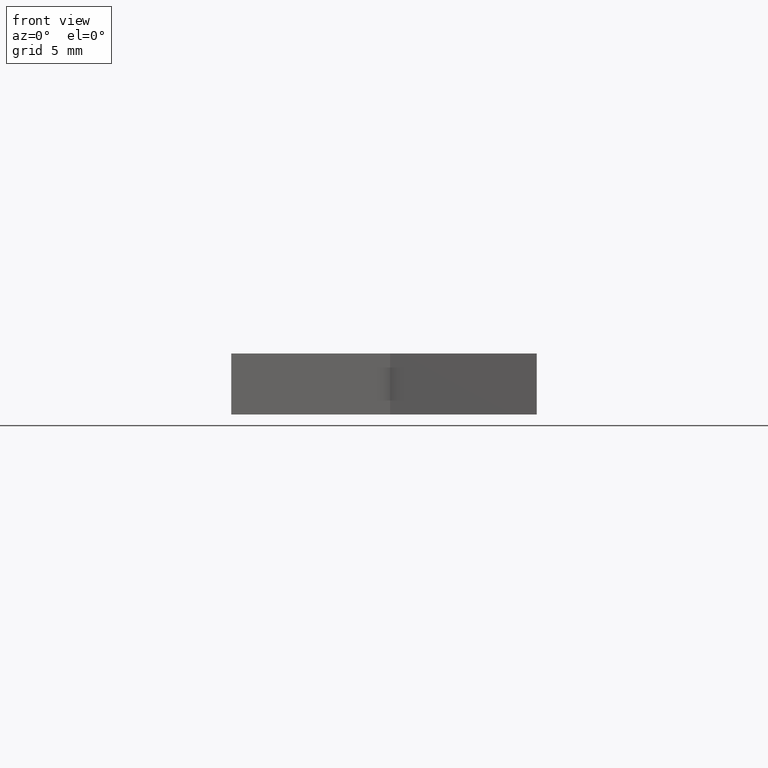
[diagram: clean part render]
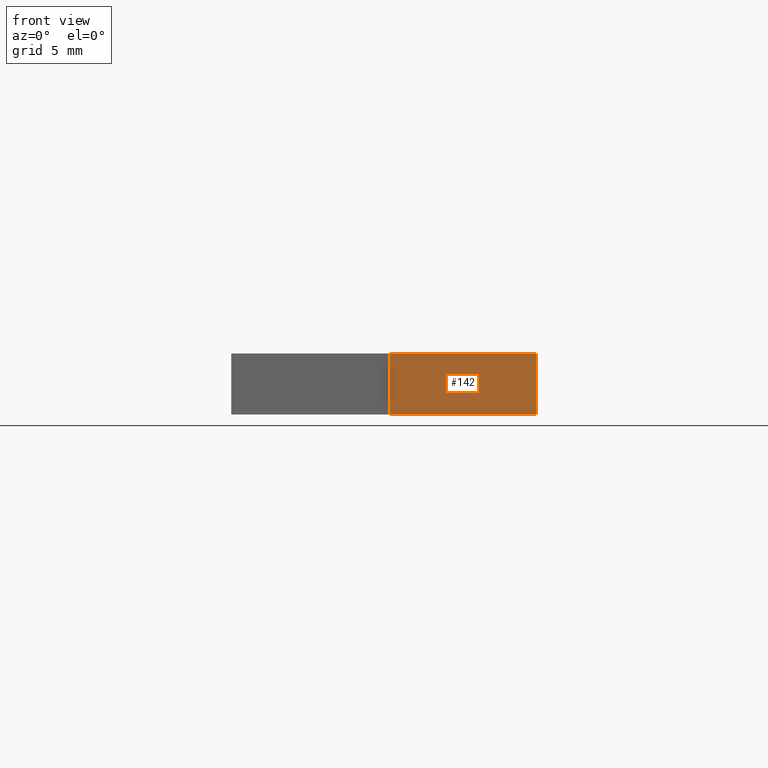
[diagram: same view with one face highlighted and labeled with its STEP entity id]
A machine part, front view. The second image highlights one B-rep face of the part: STEP entity #142.
In plain terms, the highlighted planar face has unit normal (0, -1, 0).
Its self-contained STEP definition (entity closure, byte-faithful):
#16=FACE_OUTER_BOUND('',#24,.T.);
#24=EDGE_LOOP('',(#103,#104,#105,#106));
#33=LINE('',#224,#51);
#37=LINE('',#233,#55);
#38=LINE('',#234,#56);
#39=LINE('',#235,#57);
#51=VECTOR('',#186,10.);
#55=VECTOR('',#192,10.);
#56=VECTOR('',#193,10.);
#57=VECTOR('',#194,10.);
#69=VERTEX_POINT('',#221);
#70=VERTEX_POINT('',#223);
#73=VERTEX_POINT('',#231);
#74=VERTEX_POINT('',#232);
#81=EDGE_CURVE('',#70,#69,#33,.T.);
#85=EDGE_CURVE('',#73,#74,#37,.T.);
#86=EDGE_CURVE('',#74,#70,#38,.T.);
#87=EDGE_CURVE('',#73,#69,#39,.T.);
#103=ORIENTED_EDGE('',*,*,#85,.T.);
#104=ORIENTED_EDGE('',*,*,#86,.T.);
#105=ORIENTED_EDGE('',*,*,#81,.T.);
#106=ORIENTED_EDGE('',*,*,#87,.F.);
#134=PLANE('',#173);
#142=ADVANCED_FACE('',(#16),#134,.T.);
#173=AXIS2_PLACEMENT_3D('',#230,#190,#191);
#186=DIRECTION('',(1.,1.54197642309049E-16,0.));
#190=DIRECTION('center_axis',(1.54197642309049E-16,-1.,0.));
#191=DIRECTION('ref_axis',(0.,0.,-1.));
#192=DIRECTION('',(-1.,-1.54197642309049E-16,0.));
#193=DIRECTION('',(0.,0.,-1.));
#194=DIRECTION('',(0.,0.,-1.));
#221=CARTESIAN_POINT('',(1.11022302462516E-15,1.11022302462516E-15,-1.5));
#223=CARTESIAN_POINT('',(-7.2,0.,-1.5));
#224=CARTESIAN_POINT('',(1.11022302462516E-15,1.11022302462516E-15,-1.5));
#230=CARTESIAN_POINT('Origin',(1.11022302462516E-15,1.11022302462516E-15,
0.));
#231=CARTESIAN_POINT('',(1.11022302462516E-15,1.11022302462516E-15,1.5));
#232=CARTESIAN_POINT('',(-7.2,0.,1.5));
#233=CARTESIAN_POINT('',(1.11022302462516E-15,1.11022302462516E-15,1.5));
#234=CARTESIAN_POINT('',(-7.2,0.,0.));
#235=CARTESIAN_POINT('',(1.11022302462516E-15,1.11022302462516E-15,0.));